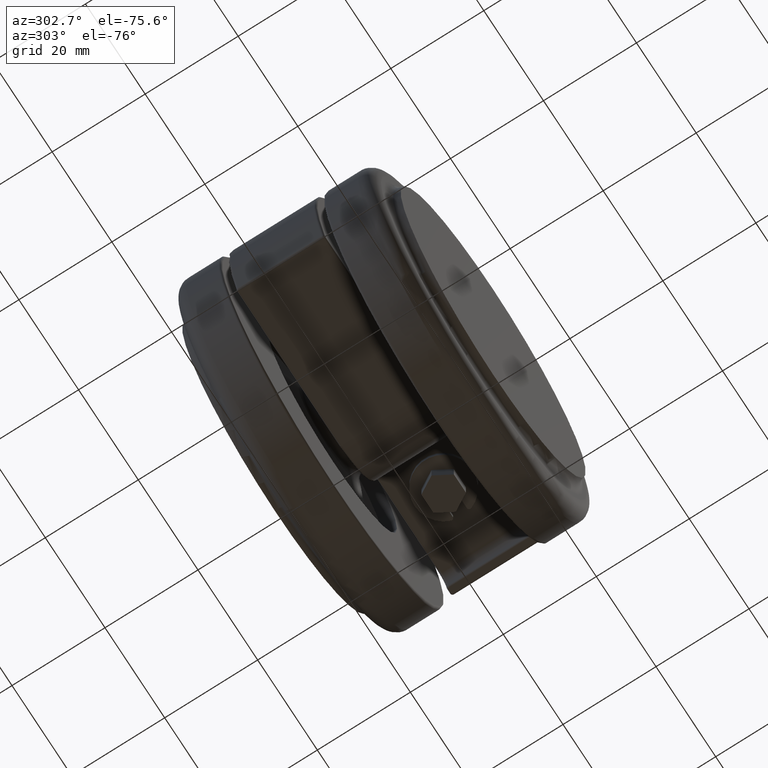
[diagram: clean part render]
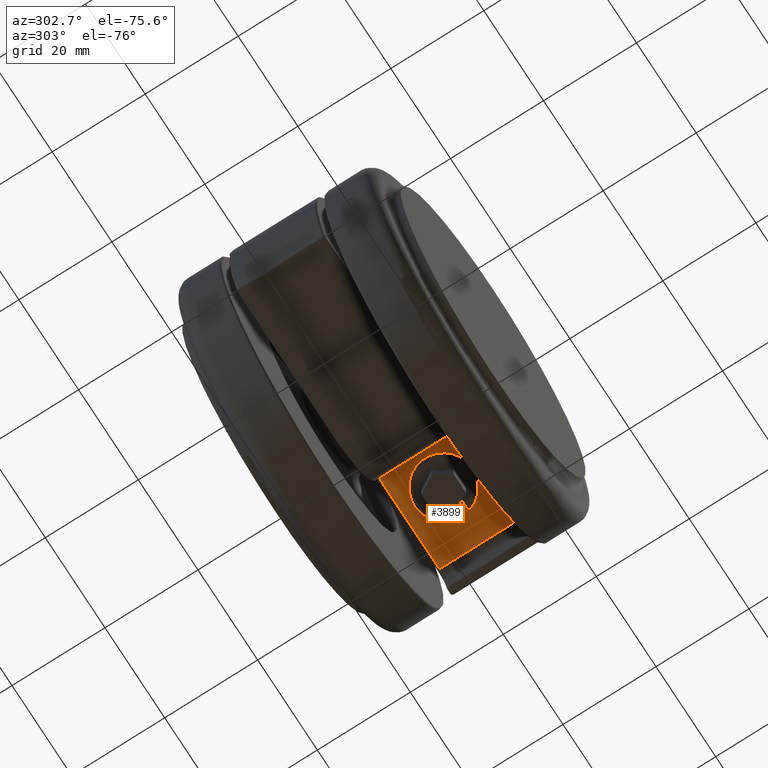
[diagram: same view with one face highlighted and labeled with its STEP entity id]
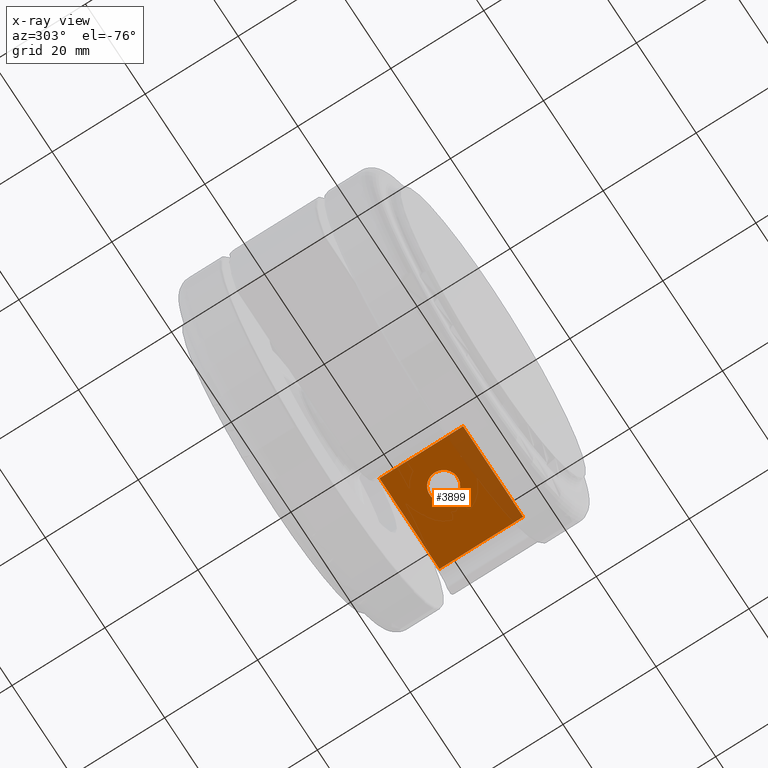
[diagram: x-ray of the same camera — body ghosted, the highlighted face saturated]
A machine part, auxiliary view. The second image highlights one B-rep face of the part: STEP entity #3899.
The next image is the same camera in x-ray: the body ghosted, the highlighted face saturated — about 18% of this face is hidden behind the body in this view.
In plain terms, the highlighted planar face has unit normal (0, 0, -1).
Its self-contained STEP definition (entity closure, byte-faithful):
#68 = CARTESIAN_POINT ( 'NONE',  ( 0.0000000000000000000, 2.842170943040399500E-014, -37.61339081420354800 ) ) ;
#77 = CARTESIAN_POINT ( 'NONE',  ( 12.61329079872222200, -8.999999999999788600, -37.61339081420354800 ) ) ;
#214 = EDGE_CURVE ( 'NONE', #3825, #940, #1483, .T. ) ;
#336 = VERTEX_POINT ( 'NONE', #2059 ) ;
#393 = DIRECTION ( 'NONE',  ( -1.000000000000000000, 0.0000000000000000000, 0.0000000000000000000 ) ) ;
#516 = CARTESIAN_POINT ( 'NONE',  ( -7.500000000000450300, 990.5000000000000000, -37.61339081420354800 ) ) ;
#824 = ORIENTED_EDGE ( 'NONE', *, *, #1336, .T. ) ;
#850 = DIRECTION ( 'NONE',  ( 0.0000000000000000000, 0.0000000000000000000, -1.000000000000000000 ) ) ;
#862 = DIRECTION ( 'NONE',  ( -0.0000000000000000000, -0.0000000000000000000, 1.000000000000000000 ) ) ;
#884 = CARTESIAN_POINT ( 'NONE',  ( 0.0000000000000000000, 2.842170943040399500E-014, -37.61339081420354800 ) ) ;
#921 = DIRECTION ( 'NONE',  ( -1.000000000000000000, 0.0000000000000000000, 0.0000000000000000000 ) ) ;
#940 = VERTEX_POINT ( 'NONE', #1908 ) ;
#955 = CIRCLE ( 'NONE', #978, 3.000000000000000000 ) ;
#978 = AXIS2_PLACEMENT_3D ( 'NONE', #68, #2192, #393 ) ;
#1038 = VERTEX_POINT ( 'NONE', #77 ) ;
#1115 = EDGE_LOOP ( 'NONE', ( #2204, #2835 ) ) ;
#1225 = CARTESIAN_POINT ( 'NONE',  ( 12.61329079872222200, 9.000000000000230900, -37.61339081420354800 ) ) ;
#1272 = DIRECTION ( 'NONE',  ( 1.000000000000000000, 0.0000000000000000000, 0.0000000000000000000 ) ) ;
#1300 = CARTESIAN_POINT ( 'NONE',  ( 12.61329079872222200, 9.000000000000230900, -37.61339081420354800 ) ) ;
#1328 = ORIENTED_EDGE ( 'NONE', *, *, #2297, .T. ) ;
#1336 = EDGE_CURVE ( 'NONE', #336, #3660, #1471, .T. ) ;
#1386 = VECTOR ( 'NONE', #1272, 1000.000000000000000 ) ;
#1471 = LINE ( 'NONE', #1225, #1386 ) ;
#1483 = CIRCLE ( 'NONE', #2510, 3.000000000000000000 ) ;
#1672 = DIRECTION ( 'NONE',  ( 0.0000000000000000000, -1.000000000000000000, 0.0000000000000000000 ) ) ;
#1682 = CARTESIAN_POINT ( 'NONE',  ( -7.500000000000450300, 990.5000000000000000, -37.61339081420354800 ) ) ;
#1695 = FACE_OUTER_BOUND ( 'NONE', #1899, .T. ) ;
#1706 = CARTESIAN_POINT ( 'NONE',  ( 3.000000000000000000, 2.842170943040399500E-014, -37.61339081420354800 ) ) ;
#1899 = EDGE_LOOP ( 'NONE', ( #1328, #2929, #3842, #824 ) ) ;
#1908 = CARTESIAN_POINT ( 'NONE',  ( -3.000000000000000000, 2.878910347014820000E-014, -37.61339081420354800 ) ) ;
#1963 = CARTESIAN_POINT ( 'NONE',  ( 12.61329079872222200, 990.5000000000000000, -37.61339081420354800 ) ) ;
#2005 = EDGE_CURVE ( 'NONE', #1038, #3098, #3839, .T. ) ;
#2059 = CARTESIAN_POINT ( 'NONE',  ( -7.500000000000450300, 9.000000000000230900, -37.61339081420354800 ) ) ;
#2192 = DIRECTION ( 'NONE',  ( -0.0000000000000000000, -0.0000000000000000000, 1.000000000000000000 ) ) ;
#2204 = ORIENTED_EDGE ( 'NONE', *, *, #214, .T. ) ;
#2297 = EDGE_CURVE ( 'NONE', #3660, #1038, #3074, .T. ) ;
#2447 = AXIS2_PLACEMENT_3D ( 'NONE', #516, #850, #2940 ) ;
#2488 = CARTESIAN_POINT ( 'NONE',  ( -7.500000000000450300, -8.999999999999788600, -37.61339081420354800 ) ) ;
#2510 = AXIS2_PLACEMENT_3D ( 'NONE', #884, #862, #921 ) ;
#2635 = PLANE ( 'NONE',  #2447 ) ;
#2715 = DIRECTION ( 'NONE',  ( -1.000000000000000000, -0.0000000000000000000, -0.0000000000000000000 ) ) ;
#2772 = EDGE_CURVE ( 'NONE', #940, #3825, #955, .T. ) ;
#2779 = LINE ( 'NONE', #1682, #3587 ) ;
#2835 = ORIENTED_EDGE ( 'NONE', *, *, #2772, .T. ) ;
#2929 = ORIENTED_EDGE ( 'NONE', *, *, #2005, .T. ) ;
#2940 = DIRECTION ( 'NONE',  ( -1.000000000000000000, 0.0000000000000000000, 0.0000000000000000000 ) ) ;
#3021 = VECTOR ( 'NONE', #2715, 1000.000000000000000 ) ;
#3074 = LINE ( 'NONE', #1963, #3785 ) ;
#3098 = VERTEX_POINT ( 'NONE', #2488 ) ;
#3354 = CARTESIAN_POINT ( 'NONE',  ( -7.500000000000439600, -8.999999999999799300, -37.61339081420354800 ) ) ;
#3493 = DIRECTION ( 'NONE',  ( 0.0000000000000000000, -1.000000000000000000, 0.0000000000000000000 ) ) ;
#3587 = VECTOR ( 'NONE', #3493, 1000.000000000000000 ) ;
#3660 = VERTEX_POINT ( 'NONE', #1300 ) ;
#3772 = EDGE_CURVE ( 'NONE', #336, #3098, #2779, .T. ) ;
#3785 = VECTOR ( 'NONE', #1672, 1000.000000000000000 ) ;
#3825 = VERTEX_POINT ( 'NONE', #1706 ) ;
#3839 = LINE ( 'NONE', #3354, #3021 ) ;
#3842 = ORIENTED_EDGE ( 'NONE', *, *, #3772, .F. ) ;
#3899 = ADVANCED_FACE ( 'NONE', ( #3926, #1695 ), #2635, .T. ) ;
#3926 = FACE_BOUND ( 'NONE', #1115, .T. ) ;